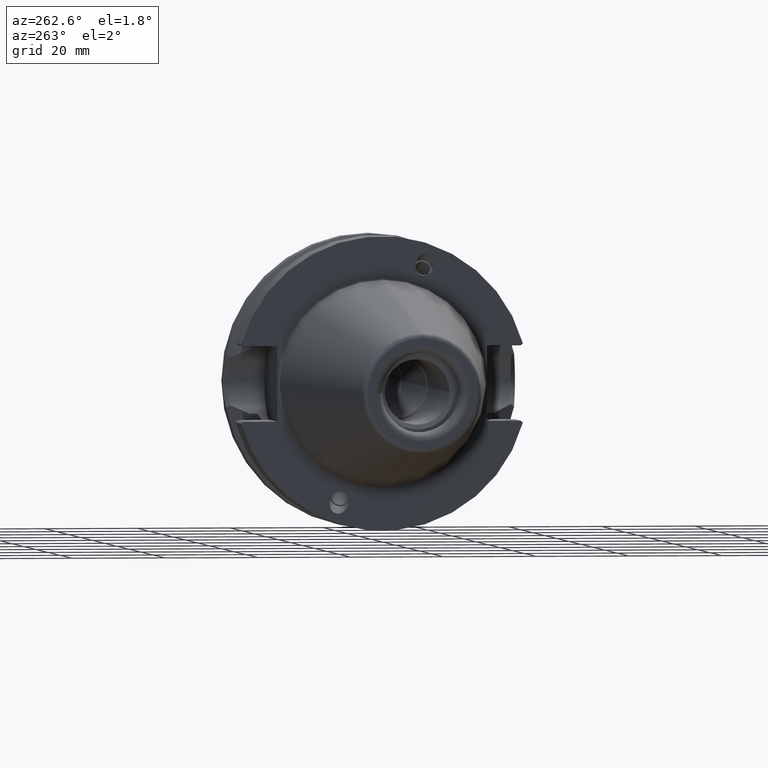
[diagram: clean part render]
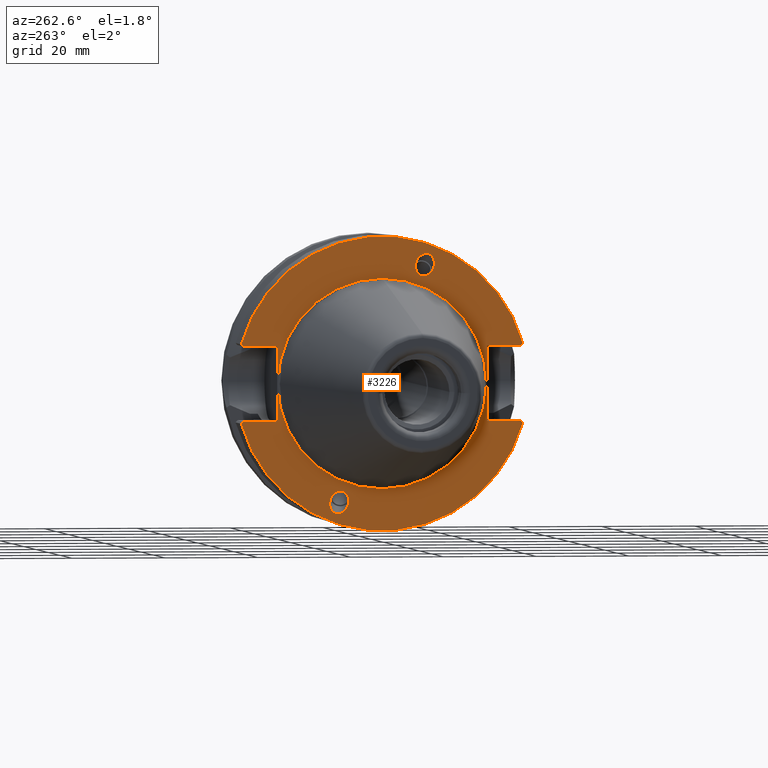
[diagram: same view with one face highlighted and labeled with its STEP entity id]
A machine part, auxiliary view. The second image highlights one B-rep face of the part: STEP entity #3226.
In plain terms, the highlighted planar face has unit normal (-1, 0, 0).
Its self-contained STEP definition (entity closure, byte-faithful):
#942=CARTESIAN_POINT('',(2.E0,0.E0,0.E0));
#943=DIRECTION('',(1.E0,0.E0,0.E0));
#944=DIRECTION('',(0.E0,0.E0,1.E0));
#945=AXIS2_PLACEMENT_3D('',#942,#943,#944);
#947=CARTESIAN_POINT('',(2.E0,0.E0,0.E0));
#948=DIRECTION('',(1.E0,0.E0,0.E0));
#949=DIRECTION('',(0.E0,0.E0,-1.E0));
#950=AXIS2_PLACEMENT_3D('',#947,#948,#949);
#952=DIRECTION('',(0.E0,0.E0,-1.E0));
#953=VECTOR('',#952,1.61E1);
#954=CARTESIAN_POINT('',(2.E0,-2.26E1,8.05E0));
#955=LINE('',#954,#953);
#956=DIRECTION('',(0.E0,1.E0,0.E0));
#957=VECTOR('',#956,7.3E0);
#958=CARTESIAN_POINT('',(2.E0,-2.99E1,-8.05E0));
#959=LINE('',#958,#957);
#960=DIRECTION('',(0.E0,7.071067811865E-1,7.071067811865E-1));
#961=VECTOR('',#960,6.159579374683E-1);
#962=CARTESIAN_POINT('',(2.E0,-3.033554803451E1,-8.485548034509E0));
#963=LINE('',#962,#961);
#964=DIRECTION('',(0.E0,-7.071067811865E-1,7.071067811865E-1));
#965=VECTOR('',#964,6.159579374683E-1);
#966=CARTESIAN_POINT('',(2.E0,3.033554803451E1,-8.485548034509E0));
#967=LINE('',#966,#965);
#968=DIRECTION('',(0.E0,-1.E0,0.E0));
#969=VECTOR('',#968,7.3E0);
#970=CARTESIAN_POINT('',(2.E0,2.99E1,-8.05E0));
#971=LINE('',#970,#969);
#972=DIRECTION('',(0.E0,0.E0,-1.E0));
#973=VECTOR('',#972,1.61E1);
#974=CARTESIAN_POINT('',(2.E0,2.26E1,8.05E0));
#975=LINE('',#974,#973);
#976=DIRECTION('',(0.E0,-1.E0,0.E0));
#977=VECTOR('',#976,7.3E0);
#978=CARTESIAN_POINT('',(2.E0,2.99E1,8.05E0));
#979=LINE('',#978,#977);
#980=DIRECTION('',(0.E0,-7.071067811866E-1,-7.071067811865E-1));
#981=VECTOR('',#980,6.159579374682E-1);
#982=CARTESIAN_POINT('',(2.E0,3.033554803451E1,8.485548034509E0));
#983=LINE('',#982,#981);
#984=DIRECTION('',(0.E0,7.071067811866E-1,-7.071067811865E-1));
#985=VECTOR('',#984,6.159579374682E-1);
#986=CARTESIAN_POINT('',(2.E0,-3.033554803451E1,8.485548034509E0));
#987=LINE('',#986,#985);
#988=DIRECTION('',(0.E0,1.E0,0.E0));
#989=VECTOR('',#988,7.3E0);
#990=CARTESIAN_POINT('',(2.E0,-2.99E1,8.05E0));
#991=LINE('',#990,#989);
#992=CARTESIAN_POINT('',(2.E0,1.006960286943E1,-2.766600650662E1));
#993=CARTESIAN_POINT('',(2.E0,1.029109054422E1,-2.758539158574E1));
#994=CARTESIAN_POINT('',(2.E0,1.073374355711E1,-2.731279317820E1));
#995=CARTESIAN_POINT('',(2.E0,1.121184407178E1,-2.654590324796E1));
#996=CARTESIAN_POINT('',(2.E0,1.134255495518E1,-2.556557614966E1));
#997=CARTESIAN_POINT('',(2.E0,1.115406659068E1,-2.467305162682E1));
#998=CARTESIAN_POINT('',(2.E0,1.072475335028E1,-2.386818019047E1));
#999=CARTESIAN_POINT('',(2.E0,9.994480892166E0,-2.320122540069E1));
#1000=CARTESIAN_POINT('',(2.E0,9.135287304495E0,-2.292107071815E1));
#1001=CARTESIAN_POINT('',(2.E0,8.620972544956E0,-2.299678009493E1));
#1002=CARTESIAN_POINT('',(2.E0,8.399484870160E0,-2.307739501582E1));
#1004=CARTESIAN_POINT('',(2.E0,8.399484870160E0,-2.307739501582E1));
#1005=CARTESIAN_POINT('',(2.E0,8.177997195364E0,-2.315800993670E1));
#1006=CARTESIAN_POINT('',(2.E0,7.735344182475E0,-2.343060834424E1));
#1007=CARTESIAN_POINT('',(2.E0,7.257243667807E0,-2.419749827448E1));
#1008=CARTESIAN_POINT('',(2.E0,7.126532784402E0,-2.517782537278E1));
#1009=CARTESIAN_POINT('',(2.E0,7.315021148904E0,-2.607034989562E1));
#1010=CARTESIAN_POINT('',(2.E0,7.744334389310E0,-2.687522133196E1));
#1011=CARTESIAN_POINT('',(2.E0,8.474606847420E0,-2.754217612175E1));
#1012=CARTESIAN_POINT('',(2.E0,9.333800435091E0,-2.782233080428E1));
#1013=CARTESIAN_POINT('',(2.E0,9.848115194630E0,-2.774662142751E1));
#1014=CARTESIAN_POINT('',(2.E0,1.006960286943E1,-2.766600650662E1));
#1016=CARTESIAN_POINT('',(2.E0,-1.006960286943E1,2.766600650662E1));
#1017=CARTESIAN_POINT('',(2.E0,-1.029109054422E1,2.758539158574E1));
#1018=CARTESIAN_POINT('',(2.E0,-1.073374355711E1,2.731279317820E1));
#1019=CARTESIAN_POINT('',(2.E0,-1.121184407178E1,2.654590324795E1));
#1020=CARTESIAN_POINT('',(2.E0,-1.134255495518E1,2.556557614966E1));
#1021=CARTESIAN_POINT('',(2.E0,-1.115406659068E1,2.467305162682E1));
#1022=CARTESIAN_POINT('',(2.E0,-1.072475335028E1,2.386818019047E1));
#1023=CARTESIAN_POINT('',(2.E0,-9.994480892166E0,2.320122540069E1));
#1024=CARTESIAN_POINT('',(2.E0,-9.135287304495E0,2.292107071815E1));
#1025=CARTESIAN_POINT('',(2.E0,-8.620972544956E0,2.299678009493E1));
#1026=CARTESIAN_POINT('',(2.E0,-8.399484870160E0,2.307739501582E1));
#1028=CARTESIAN_POINT('',(2.E0,-8.399484870160E0,2.307739501582E1));
#1029=CARTESIAN_POINT('',(2.E0,-8.177997195364E0,2.315800993670E1));
#1030=CARTESIAN_POINT('',(2.E0,-7.735344182475E0,2.343060834424E1));
#1031=CARTESIAN_POINT('',(2.E0,-7.257243667807E0,2.419749827448E1));
#1032=CARTESIAN_POINT('',(2.E0,-7.126532784402E0,2.517782537278E1));
#1033=CARTESIAN_POINT('',(2.E0,-7.315021148904E0,2.607034989562E1));
#1034=CARTESIAN_POINT('',(2.E0,-7.744334389310E0,2.687522133196E1));
#1035=CARTESIAN_POINT('',(2.E0,-8.474606847420E0,2.754217612175E1));
#1036=CARTESIAN_POINT('',(2.E0,-9.333800435091E0,2.782233080428E1));
#1037=CARTESIAN_POINT('',(2.E0,-9.848115194630E0,2.774662142751E1));
#1038=CARTESIAN_POINT('',(2.E0,-1.006960286943E1,2.766600650662E1));
#1325=CARTESIAN_POINT('',(2.E0,0.E0,0.E0));
#1326=DIRECTION('',(-1.E0,0.E0,0.E0));
#1327=DIRECTION('',(0.E0,9.630332709368E-1,-2.693824772860E-1));
#1328=AXIS2_PLACEMENT_3D('',#1325,#1326,#1327);
#1334=CARTESIAN_POINT('',(2.E0,0.E0,0.E0));
#1335=DIRECTION('',(-1.E0,0.E0,0.E0));
#1336=DIRECTION('',(0.E0,-9.630332709368E-1,2.693824772860E-1));
#1337=AXIS2_PLACEMENT_3D('',#1334,#1335,#1336);
#1946=CARTESIAN_POINT('',(2.E0,2.26E1,8.05E0));
#1947=CARTESIAN_POINT('',(2.E0,2.26E1,-8.05E0));
#1948=VERTEX_POINT('',#1946);
#1949=VERTEX_POINT('',#1947);
#2022=CARTESIAN_POINT('',(2.E0,0.E0,2.25E1));
#2023=CARTESIAN_POINT('',(2.E0,0.E0,-2.25E1));
#2024=VERTEX_POINT('',#2022);
#2025=VERTEX_POINT('',#2023);
#2058=CARTESIAN_POINT('',(2.E0,2.99E1,8.05E0));
#2059=VERTEX_POINT('',#2058);
#2060=CARTESIAN_POINT('',(2.E0,2.99E1,-8.05E0));
#2061=VERTEX_POINT('',#2060);
#2070=CARTESIAN_POINT('',(2.E0,3.033554803451E1,8.485548034509E0));
#2071=VERTEX_POINT('',#2070);
#2072=CARTESIAN_POINT('',(2.E0,3.033554803451E1,-8.485548034509E0));
#2073=VERTEX_POINT('',#2072);
#2075=CARTESIAN_POINT('',(2.E0,-3.033554803451E1,8.485548034509E0));
#2077=VERTEX_POINT('',#2075);
#2079=CARTESIAN_POINT('',(2.E0,-3.033554803451E1,-8.485548034509E0));
#2081=VERTEX_POINT('',#2079);
#2082=CARTESIAN_POINT('',(2.E0,-2.26E1,8.05E0));
#2083=CARTESIAN_POINT('',(2.E0,-2.26E1,-8.05E0));
#2084=VERTEX_POINT('',#2082);
#2085=VERTEX_POINT('',#2083);
#2086=CARTESIAN_POINT('',(2.E0,-2.99E1,8.05E0));
#2087=VERTEX_POINT('',#2086);
#2088=CARTESIAN_POINT('',(2.E0,-2.99E1,-8.05E0));
#2089=VERTEX_POINT('',#2088);
#2121=VERTEX_POINT('',#992);
#2122=VERTEX_POINT('',#1002);
#2165=VERTEX_POINT('',#1016);
#2166=VERTEX_POINT('',#1026);
#3178=CARTESIAN_POINT('',(2.E0,0.E0,0.E0));
#3179=DIRECTION('',(-1.E0,0.E0,0.E0));
#3180=DIRECTION('',(0.E0,0.E0,-1.E0));
#3181=AXIS2_PLACEMENT_3D('',#3178,#3179,#3180);
#3182=PLANE('',#3181);
#3184=ORIENTED_EDGE('',*,*,#3183,.T.);
#3186=ORIENTED_EDGE('',*,*,#3185,.F.);
#3188=ORIENTED_EDGE('',*,*,#3187,.F.);
#3190=ORIENTED_EDGE('',*,*,#3189,.F.);
#3192=ORIENTED_EDGE('',*,*,#3191,.T.);
#3194=ORIENTED_EDGE('',*,*,#3193,.T.);
#3196=ORIENTED_EDGE('',*,*,#3195,.F.);
#3198=ORIENTED_EDGE('',*,*,#3197,.F.);
#3200=ORIENTED_EDGE('',*,*,#3199,.F.);
#3202=ORIENTED_EDGE('',*,*,#3201,.F.);
#3204=ORIENTED_EDGE('',*,*,#3203,.T.);
#3206=ORIENTED_EDGE('',*,*,#3205,.T.);
#3207=EDGE_LOOP('',(#3184,#3186,#3188,#3190,#3192,#3194,#3196,#3198,#3200,#3202,
#3204,#3206));
#3208=FACE_OUTER_BOUND('',#3207,.F.);
#3210=ORIENTED_EDGE('',*,*,#3209,.F.);
#3212=ORIENTED_EDGE('',*,*,#3211,.F.);
#3213=EDGE_LOOP('',(#3210,#3212));
#3214=FACE_BOUND('',#3213,.F.);
#3216=ORIENTED_EDGE('',*,*,#3215,.F.);
#3218=ORIENTED_EDGE('',*,*,#3217,.F.);
#3219=EDGE_LOOP('',(#3216,#3218));
#3220=FACE_BOUND('',#3219,.F.);
#3222=ORIENTED_EDGE('',*,*,#3221,.F.);
#3223=ORIENTED_EDGE('',*,*,#3168,.F.);
#3224=EDGE_LOOP('',(#3222,#3223));
#3225=FACE_BOUND('',#3224,.F.);
#3226=ADVANCED_FACE('',(#3208,#3214,#3220,#3225),#3182,.T.);
#946=CIRCLE('',#945,2.25E1);
#951=CIRCLE('',#950,2.25E1);
#1003=B_SPLINE_CURVE_WITH_KNOTS('',3,(#992,#993,#994,#995,#996,#997,#998,#999,
#1000,#1001,#1002),.UNSPECIFIED.,.F.,.F.,(4,1,1,1,1,1,1,1,4),(0.E0,1.25E-1,
2.5E-1,3.75E-1,5.E-1,6.25E-1,7.5E-1,8.75E-1,1.E0),.UNSPECIFIED.);
#1015=B_SPLINE_CURVE_WITH_KNOTS('',3,(#1004,#1005,#1006,#1007,#1008,#1009,#1010,
#1011,#1012,#1013,#1014),.UNSPECIFIED.,.F.,.F.,(4,1,1,1,1,1,1,1,4),(0.E0,
1.25E-1,2.5E-1,3.75E-1,5.E-1,6.25E-1,7.5E-1,8.75E-1,1.E0),.UNSPECIFIED.);
#1027=B_SPLINE_CURVE_WITH_KNOTS('',3,(#1016,#1017,#1018,#1019,#1020,#1021,#1022,
#1023,#1024,#1025,#1026),.UNSPECIFIED.,.F.,.F.,(4,1,1,1,1,1,1,1,4),(0.E0,
1.25E-1,2.5E-1,3.75E-1,5.E-1,6.25E-1,7.5E-1,8.75E-1,1.E0),.UNSPECIFIED.);
#1039=B_SPLINE_CURVE_WITH_KNOTS('',3,(#1028,#1029,#1030,#1031,#1032,#1033,#1034,
#1035,#1036,#1037,#1038),.UNSPECIFIED.,.F.,.F.,(4,1,1,1,1,1,1,1,4),(0.E0,
1.25E-1,2.5E-1,3.75E-1,5.E-1,6.25E-1,7.5E-1,8.75E-1,1.E0),.UNSPECIFIED.);
#1329=CIRCLE('',#1328,3.15E1);
#1338=CIRCLE('',#1337,3.15E1);
#3168=EDGE_CURVE('',#2166,#2165,#1039,.T.);
#3183=EDGE_CURVE('',#2084,#2085,#955,.T.);
#3185=EDGE_CURVE('',#2089,#2085,#959,.T.);
#3187=EDGE_CURVE('',#2081,#2089,#963,.T.);
#3189=EDGE_CURVE('',#2073,#2081,#1329,.T.);
#3191=EDGE_CURVE('',#2073,#2061,#967,.T.);
#3193=EDGE_CURVE('',#2061,#1949,#971,.T.);
#3195=EDGE_CURVE('',#1948,#1949,#975,.T.);
#3197=EDGE_CURVE('',#2059,#1948,#979,.T.);
#3199=EDGE_CURVE('',#2071,#2059,#983,.T.);
#3201=EDGE_CURVE('',#2077,#2071,#1338,.T.);
#3203=EDGE_CURVE('',#2077,#2087,#987,.T.);
#3205=EDGE_CURVE('',#2087,#2084,#991,.T.);
#3209=EDGE_CURVE('',#2024,#2025,#946,.T.);
#3211=EDGE_CURVE('',#2025,#2024,#951,.T.);
#3215=EDGE_CURVE('',#2121,#2122,#1003,.T.);
#3217=EDGE_CURVE('',#2122,#2121,#1015,.T.);
#3221=EDGE_CURVE('',#2165,#2166,#1027,.T.);